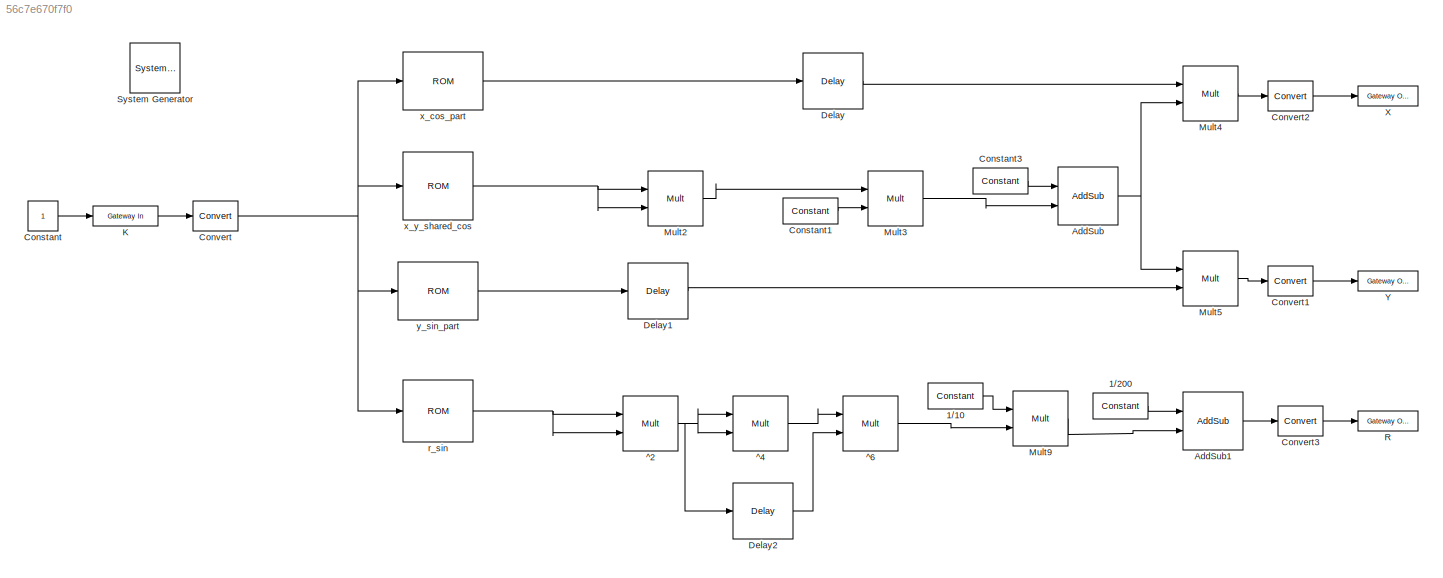
MODEL slx_56c7e670f7f0
KIND model
CONFIG AbsTol = auto
CONFIG EnableMultiTasking = off
CONFIG FixedStep = auto
CONFIG MaxStep = auto
CONFIG MinStep = auto
CONFIG RelTol = 1e-3
CONFIG SampleTimeConstraint = Unconstrained
CONFIG Solver = VariableStepAuto
CONFIG SolverName = VariableStepAuto
CONFIG StartTime = 0.0
CONFIG StopTime = 500
BLOCK [Reference]  K  REF=xbsIndex_r4/Gateway In
  Ports = [1, 1]
  SourceBlock = xbsIndex_r4/Gateway In
  SourceType = Xilinx Gateway In Block
BLOCK [Reference]  System Generator  REF=xbsIndex_r4/ System Generator
  AttributesFormatString = System\nGenerator
  Ports = []
  SourceBlock = xbsIndex_r4/ System Generator
  SourceType = Xilinx System Generator Block
  Tag = genX
  UserDataPersistent = on
BLOCK [Reference]  Y  REF=xbsIndex_r4/Gateway Out
  Ports = [1, 1]
  SourceBlock = xbsIndex_r4/Gateway Out
  SourceType = Xilinx Gateway Out Block
BLOCK [Reference] 1//10  REF=xbsIndex_r4/Constant
  Ports = [0, 1]
  SourceBlock = xbsIndex_r4/Constant
  SourceType = Xilinx Constant Block Block
BLOCK [Reference] 1//200  REF=xbsIndex_r4/Constant
  Ports = [0, 1]
  SourceBlock = xbsIndex_r4/Constant
  SourceType = Xilinx Constant Block Block
BLOCK [Reference] AddSub  REF=xbsIndex_r4/AddSub
  Ports = [2, 1]
  SourceBlock = xbsIndex_r4/AddSub
  SourceType = Xilinx Adder/Subtracter Block
BLOCK [Reference] AddSub1  REF=xbsIndex_r4/AddSub
  Ports = [2, 1]
  SourceBlock = xbsIndex_r4/AddSub
  SourceType = Xilinx Adder/Subtracter Block
BLOCK [Constant] Constant
BLOCK [Reference] Constant1  REF=xbsIndex_r4/Constant
  Ports = [0, 1]
  SourceBlock = xbsIndex_r4/Constant
  SourceType = Xilinx Constant Block Block
BLOCK [Reference] Constant3  REF=xbsIndex_r4/Constant
  Ports = [0, 1]
  SourceBlock = xbsIndex_r4/Constant
  SourceType = Xilinx Constant Block Block
BLOCK [Reference] Convert  REF=xbsIndex_r4/Convert
  Ports = [1, 1]
  SourceBlock = xbsIndex_r4/Convert
  SourceType = Xilinx Type Converter Block
BLOCK [Reference] Convert1  REF=xbsIndex_r4/Convert
  Ports = [1, 1]
  SourceBlock = xbsIndex_r4/Convert
  SourceType = Xilinx Type Converter Block
BLOCK [Reference] Convert2  REF=xbsIndex_r4/Convert
  Ports = [1, 1]
  SourceBlock = xbsIndex_r4/Convert
  SourceType = Xilinx Type Converter Block
BLOCK [Reference] Convert3  REF=xbsIndex_r4/Convert
  Ports = [1, 1]
  SourceBlock = xbsIndex_r4/Convert
  SourceType = Xilinx Type Converter Block
BLOCK [Reference] Delay  REF=xbsIndex_r4/Delay
  Ports = [1, 1]
  SourceBlock = xbsIndex_r4/Delay
  SourceType = Xilinx Delay Block
BLOCK [Reference] Delay1  REF=xbsIndex_r4/Delay
  Ports = [1, 1]
  SourceBlock = xbsIndex_r4/Delay
  SourceType = Xilinx Delay Block
BLOCK [Reference] Delay2  REF=xbsIndex_r4/Delay
  Ports = [1, 1]
  SourceBlock = xbsIndex_r4/Delay
  SourceType = Xilinx Delay Block
BLOCK [Reference] Mult2  REF=xbsIndex_r4/Mult
  Ports = [2, 1]
  SourceBlock = xbsIndex_r4/Mult
  SourceType = Xilinx Multiplier Block
BLOCK [Reference] Mult3  REF=xbsIndex_r4/Mult
  Ports = [2, 1]
  SourceBlock = xbsIndex_r4/Mult
  SourceType = Xilinx Multiplier Block
BLOCK [Reference] Mult4  REF=xbsIndex_r4/Mult
  Ports = [2, 1]
  SourceBlock = xbsIndex_r4/Mult
  SourceType = Xilinx Multiplier Block
BLOCK [Reference] Mult5  REF=xbsIndex_r4/Mult
  Ports = [2, 1]
  SourceBlock = xbsIndex_r4/Mult
  SourceType = Xilinx Multiplier Block
BLOCK [Reference] Mult9  REF=xbsIndex_r4/Mult
  Ports = [2, 1]
  SourceBlock = xbsIndex_r4/Mult
  SourceType = Xilinx Multiplier Block
BLOCK [Reference] R  REF=xbsIndex_r4/Gateway Out
  Ports = [1, 1]
  SourceBlock = xbsIndex_r4/Gateway Out
  SourceType = Xilinx Gateway Out Block
BLOCK [Reference] X  REF=xbsIndex_r4/Gateway Out
  Ports = [1, 1]
  SourceBlock = xbsIndex_r4/Gateway Out
  SourceType = Xilinx Gateway Out Block
BLOCK [Reference] ^2  REF=xbsIndex_r4/Mult
  Ports = [2, 1]
  SourceBlock = xbsIndex_r4/Mult
  SourceType = Xilinx Multiplier Block
BLOCK [Reference] ^4  REF=xbsIndex_r4/Mult
  Ports = [2, 1]
  SourceBlock = xbsIndex_r4/Mult
  SourceType = Xilinx Multiplier Block
BLOCK [Reference] ^6  REF=xbsIndex_r4/Mult
  Ports = [2, 1]
  SourceBlock = xbsIndex_r4/Mult
  SourceType = Xilinx Multiplier Block
BLOCK [Reference] r_sin  REF=xbsIndex_r4/ROM
  Ports = [1, 1]
  SourceBlock = xbsIndex_r4/ROM
  SourceType = Xilinx Single Port Read-Only Memory Block
BLOCK [Reference] x_cos_part  REF=xbsIndex_r4/ROM
  Ports = [1, 1]
  SourceBlock = xbsIndex_r4/ROM
  SourceType = Xilinx Single Port Read-Only Memory Block
BLOCK [Reference] x_y_shared_cos  REF=xbsIndex_r4/ROM
  Ports = [1, 1]
  SourceBlock = xbsIndex_r4/ROM
  SourceType = Xilinx Single Port Read-Only Memory Block
BLOCK [Reference] y_sin_part  REF=xbsIndex_r4/ROM
  Ports = [1, 1]
  SourceBlock = xbsIndex_r4/ROM
  SourceType = Xilinx Single Port Read-Only Memory Block
LINE  K:1 -> Convert:1
LINE 1//10:1 -> Mult9:1
LINE 1//200:1 -> AddSub1:1
LINE AddSub1:1 -> Convert3:1
NET AddSub:1 -> Mult4:2, Mult5:1
LINE Constant1:1 -> Mult3:2
LINE Constant3:1 -> AddSub:1
LINE Constant:1 ->  K:1
LINE Convert1:1 ->  Y:1
LINE Convert2:1 -> X:1
LINE Convert3:1 -> R:1
NET Convert:1 -> r_sin:1, x_cos_part:1, x_y_shared_cos:1, y_sin_part:1
LINE Delay1:1 -> Mult5:2
LINE Delay2:1 -> ^6:2
LINE Delay:1 -> Mult4:1
LINE Mult2:1 -> Mult3:1
LINE Mult3:1 -> AddSub:2
LINE Mult4:1 -> Convert2:1
LINE Mult5:1 -> Convert1:1
LINE Mult9:1 -> AddSub1:2
NET ^2:1 -> Delay2:1, ^4:1, ^4:2
LINE ^4:1 -> ^6:1
LINE ^6:1 -> Mult9:2
NET r_sin:1 -> ^2:1, ^2:2
LINE x_cos_part:1 -> Delay:1
NET x_y_shared_cos:1 -> Mult2:1, Mult2:2
LINE y_sin_part:1 -> Delay1:1
note: NET lines group one-source signal fan-out (src -> all destinations, sorted); 1:1 wires keep LINE
